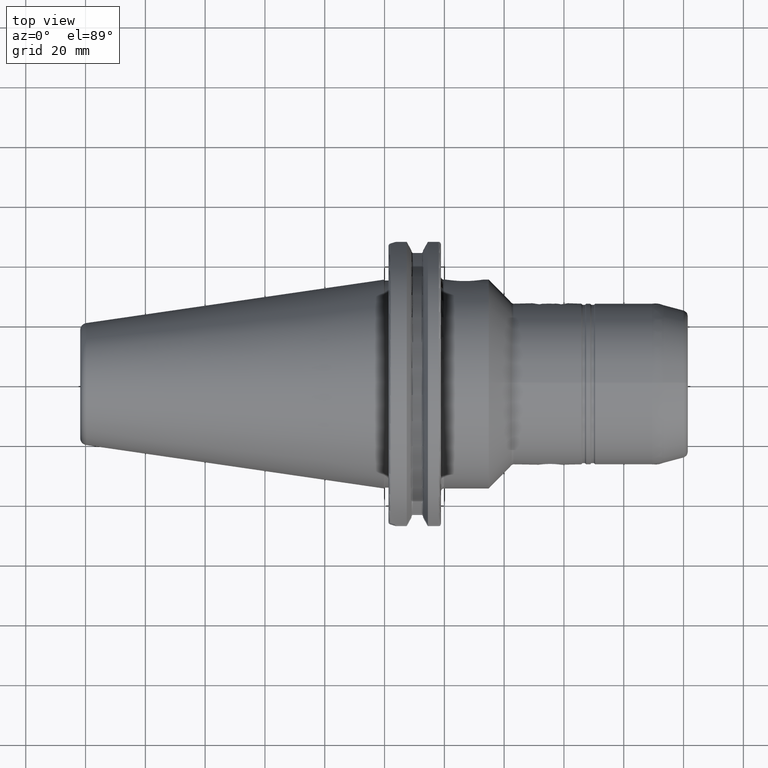
[diagram: clean part render]
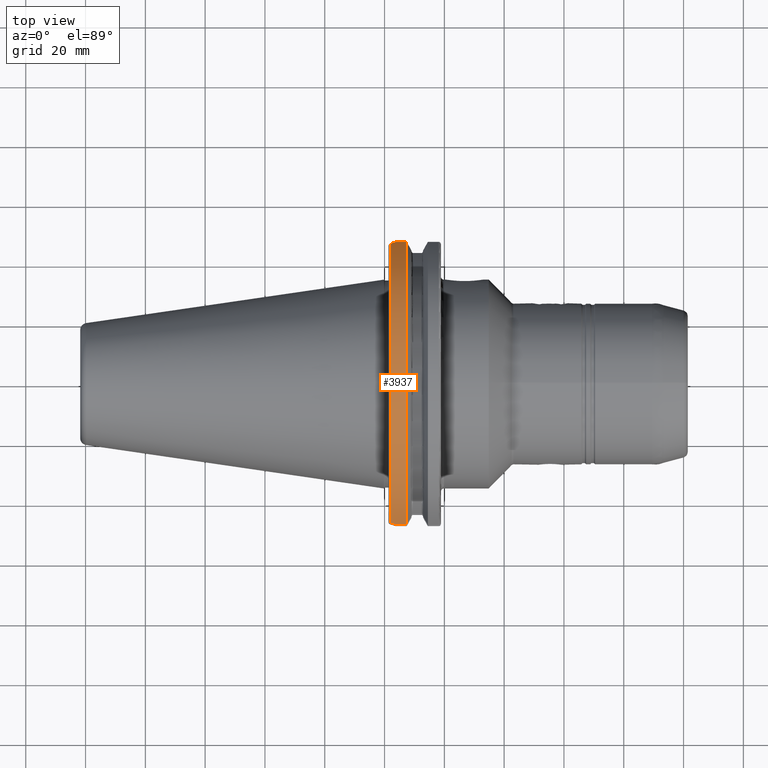
[diagram: same view with one face highlighted and labeled with its STEP entity id]
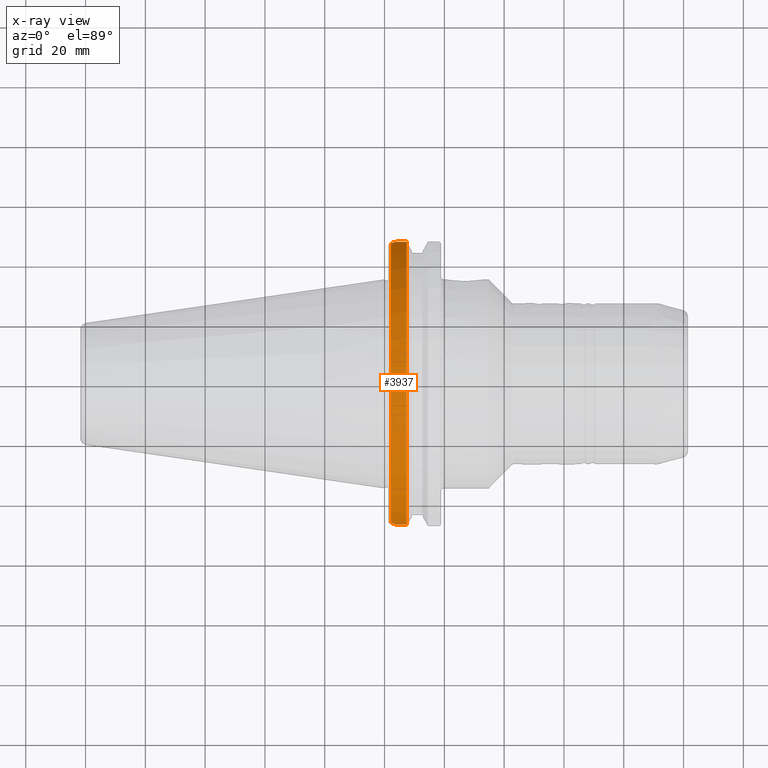
[diagram: x-ray of the same camera — body ghosted, the highlighted face saturated]
A machine part, top view. The second image highlights one B-rep face of the part: STEP entity #3937.
The next image is the same camera in x-ray: the body ghosted, the highlighted face saturated — about 0% of this face is hidden behind the body in this view.
In plain terms, the highlighted cylindrical surface (partial cylindrical patch) has radius 49.2125 mm, axis along (1, 0, 0).
Its self-contained STEP definition (entity closure, byte-faithful):
#88 = ORIENTED_EDGE ( 'NONE', *, *, #7012, .F. ) ;
#181 = AXIS2_PLACEMENT_3D ( 'NONE', #2587, #6497, #3157 ) ;
#284 = B_SPLINE_CURVE_WITH_KNOTS ( 'NONE', 3,
 ( #4655, #4089, #5778, #2430 ),
 .UNSPECIFIED., .F., .F.,
 ( 4, 4 ),
 ( 0.3149169352779260800, 1.000000000000000000 ),
 .UNSPECIFIED. ) ;
#396 = B_SPLINE_CURVE_WITH_KNOTS ( 'NONE', 3,
 ( #2628, #5979, #7088, #3741 ),
 .UNSPECIFIED., .F., .F.,
 ( 4, 4 ),
 ( 0.0000000000000000000, 0.6808190682210152300 ),
 .UNSPECIFIED. ) ;
#945 = CARTESIAN_POINT ( 'NONE',  ( 2.114823414815891800, 46.78300494247927300, 15.21005974429853700 ) ) ;
#1142 = ORIENTED_EDGE ( 'NONE', *, *, #7240, .T. ) ;
#1343 = CARTESIAN_POINT ( 'NONE',  ( 7.387999178603221800, -47.31187355158719000, 13.61439856052010600 ) ) ;
#1501 = VERTEX_POINT ( 'NONE', #2593 ) ;
#1646 = FACE_OUTER_BOUND ( 'NONE', #1708, .T. ) ;
#1647 = CIRCLE ( 'NONE', #7216, 49.21249999999999100 ) ;
#1658 = VERTEX_POINT ( 'NONE', #4247 ) ;
#1708 = EDGE_LOOP ( 'NONE', ( #1142, #5108, #2634, #6731, #4691, #88, #3677, #6287 ) ) ;
#1712 = CARTESIAN_POINT ( 'NONE',  ( 7.419901956246685700, 47.28841033909355900, 13.55660246722346900 ) ) ;
#1734 = CARTESIAN_POINT ( 'NONE',  ( 7.314472504668600500, 47.31138307138064600, 13.47617654831240200 ) ) ;
#1757 = EDGE_CURVE ( 'NONE', #4119, #6488, #2160, .T. ) ;
#1780 = EDGE_CURVE ( 'NONE', #5079, #1501, #4620, .T. ) ;
#1976 = DIRECTION ( 'NONE',  ( 1.000000000000000000, 4.151679104512832300E-020, -0.0000000000000000000 ) ) ;
#2160 = B_SPLINE_CURVE_WITH_KNOTS ( 'NONE', 3,
 ( #1343, #4679, #5819, #2470 ),
 .UNSPECIFIED., .F., .F.,
 ( 4, 4 ),
 ( 0.0000000000000000000, 1.000000000000000000 ),
 .UNSPECIFIED. ) ;
#2295 = EDGE_CURVE ( 'NONE', #2437, #5702, #2352, .T. ) ;
#2352 = CIRCLE ( 'NONE', #181, 49.21249999999999100 ) ;
#2393 = LINE ( 'NONE', #2976, #6681 ) ;
#2430 = CARTESIAN_POINT ( 'NONE',  ( 3.856425719053355300, -47.31187355158719000, 13.61439856052011000 ) ) ;
#2436 = B_SPLINE_CURVE_WITH_KNOTS ( 'NONE', 3,
 ( #1712, #5037, #5056, #1734 ),
 .UNSPECIFIED., .F., .F.,
 ( 4, 4 ),
 ( 0.0000000000000000000, 1.000000000000000000 ),
 .UNSPECIFIED. ) ;
#2437 = VERTEX_POINT ( 'NONE', #945 ) ;
#2470 = CARTESIAN_POINT ( 'NONE',  ( 7.419901956246685700, -47.30291211651020000, 13.64548912273470200 ) ) ;
#2587 = CARTESIAN_POINT ( 'NONE',  ( 2.116068725322314900, -0.02003167494522145300, -2.740953257266259200E-015 ) ) ;
#2593 = CARTESIAN_POINT ( 'NONE',  ( 3.822483471962207200, 47.31138307138064600, 13.47617654831240100 ) ) ;
#2628 = CARTESIAN_POINT ( 'NONE',  ( 3.822483471962207200, 47.31138307138064600, 13.47617654831240100 ) ) ;
#2634 = ORIENTED_EDGE ( 'NONE', *, *, #6263, .T. ) ;
#2804 = CARTESIAN_POINT ( 'NONE',  ( 3.856425719053355300, -47.31187355158719000, 13.61439856052011000 ) ) ;
#2824 = CARTESIAN_POINT ( 'NONE',  ( 34.86606872532232900, -0.02003167494522144900, -2.740953257266259200E-015 ) ) ;
#2976 = CARTESIAN_POINT ( 'NONE',  ( 34.86606872532232900, -47.31187355158719000, 13.61439856052010600 ) ) ;
#3138 = VERTEX_POINT ( 'NONE', #2804 ) ;
#3157 = DIRECTION ( 'NONE',  ( 0.0000000000000000000, -1.000000000000000000, 0.0000000000000000000 ) ) ;
#3200 = CARTESIAN_POINT ( 'NONE',  ( 7.419901956246685700, -47.30291211651020000, 13.64548912273470200 ) ) ;
#3296 = CYLINDRICAL_SURFACE ( 'NONE', #3972, 49.21249999999999100 ) ;
#3391 = DIRECTION ( 'NONE',  ( 1.000000000000000000, 4.151679104512832300E-020, -0.0000000000000000000 ) ) ;
#3538 = DIRECTION ( 'NONE',  ( 1.000000000000000000, 4.151679104512832300E-020, -0.0000000000000000000 ) ) ;
#3619 = CARTESIAN_POINT ( 'NONE',  ( 34.86606872532232900, 47.31138307138064600, 13.47617654831240200 ) ) ;
#3677 = ORIENTED_EDGE ( 'NONE', *, *, #6899, .T. ) ;
#3741 = CARTESIAN_POINT ( 'NONE',  ( 2.114823414815891800, 46.78300494247927300, 15.21005974429853700 ) ) ;
#3937 = ADVANCED_FACE ( 'NONE', ( #1646 ), #3296, .T. ) ;
#3972 = AXIS2_PLACEMENT_3D ( 'NONE', #2824, #3391, #6176 ) ;
#4089 = CARTESIAN_POINT ( 'NONE',  ( 2.696188660222499100, -46.96029349961789700, 14.79394047331386900 ) ) ;
#4119 = VERTEX_POINT ( 'NONE', #5336 ) ;
#4170 = DIRECTION ( 'NONE',  ( -1.000000000000000000, -4.151679104512832300E-020, 0.0000000000000000000 ) ) ;
#4247 = CARTESIAN_POINT ( 'NONE',  ( 7.419901956246685700, 47.28841033909355900, 13.55660246722346900 ) ) ;
#4620 = LINE ( 'NONE', #3619, #4794 ) ;
#4655 = CARTESIAN_POINT ( 'NONE',  ( 2.114790538532279400, -46.76836643219115800, 15.37736494271878700 ) ) ;
#4679 = CARTESIAN_POINT ( 'NONE',  ( 7.398633379463540800, -47.30888981274305400, 13.62476306578935900 ) ) ;
#4691 = ORIENTED_EDGE ( 'NONE', *, *, #1757, .T. ) ;
#4794 = VECTOR ( 'NONE', #4170, 1000.000000000000000 ) ;
#5037 = CARTESIAN_POINT ( 'NONE',  ( 7.384758722341112900, 47.29590849067919600, 13.53043822057634500 ) ) ;
#5056 = CARTESIAN_POINT ( 'NONE',  ( 7.349615613504857600, 47.30365744763720000, 13.50331070615491300 ) ) ;
#5079 = VERTEX_POINT ( 'NONE', #6025 ) ;
#5108 = ORIENTED_EDGE ( 'NONE', *, *, #2295, .T. ) ;
#5291 = CARTESIAN_POINT ( 'NONE',  ( 7.419901956246685700, -0.02003167494522145300, -2.740953257266259200E-015 ) ) ;
#5336 = CARTESIAN_POINT ( 'NONE',  ( 7.387999178603221800, -47.31187355158719000, 13.61439856052010600 ) ) ;
#5370 = EDGE_CURVE ( 'NONE', #3138, #4119, #2393, .T. ) ;
#5643 = CARTESIAN_POINT ( 'NONE',  ( 2.114790538532279400, -46.76836643219115800, 15.37736494271878700 ) ) ;
#5702 = VERTEX_POINT ( 'NONE', #5643 ) ;
#5778 = CARTESIAN_POINT ( 'NONE',  ( 3.276307189637925400, -47.14163031576718800, 14.20576630914583100 ) ) ;
#5819 = CARTESIAN_POINT ( 'NONE',  ( 7.409267580323859900, -47.30590266666298800, 13.63512659018210400 ) ) ;
#5872 = DIRECTION ( 'NONE',  ( 0.0000000000000000000, 1.000000000000000000, 0.0000000000000000000 ) ) ;
#5979 = CARTESIAN_POINT ( 'NONE',  ( 3.253678478131263800, 47.14581475115960500, 14.05769036538198200 ) ) ;
#6025 = CARTESIAN_POINT ( 'NONE',  ( 7.314472504668600500, 47.31138307138064600, 13.47617654831240200 ) ) ;
#6176 = DIRECTION ( 'NONE',  ( 0.0000000000000000000, 1.000000000000000000, 0.0000000000000000000 ) ) ;
#6263 = EDGE_CURVE ( 'NONE', #5702, #3138, #284, .T. ) ;
#6287 = ORIENTED_EDGE ( 'NONE', *, *, #1780, .T. ) ;
#6488 = VERTEX_POINT ( 'NONE', #3200 ) ;
#6497 = DIRECTION ( 'NONE',  ( 1.000000000000000000, 4.151679104512832300E-020, -0.0000000000000000000 ) ) ;
#6681 = VECTOR ( 'NONE', #3538, 1000.000000000000000 ) ;
#6731 = ORIENTED_EDGE ( 'NONE', *, *, #5370, .T. ) ;
#6899 = EDGE_CURVE ( 'NONE', #1658, #5079, #2436, .T. ) ;
#7012 = EDGE_CURVE ( 'NONE', #1658, #6488, #1647, .T. ) ;
#7088 = CARTESIAN_POINT ( 'NONE',  ( 2.684873484300321700, 46.96952848801269200, 14.63615260892078300 ) ) ;
#7216 = AXIS2_PLACEMENT_3D ( 'NONE', #5291, #1976, #5872 ) ;
#7240 = EDGE_CURVE ( 'NONE', #1501, #2437, #396, .T. ) ;